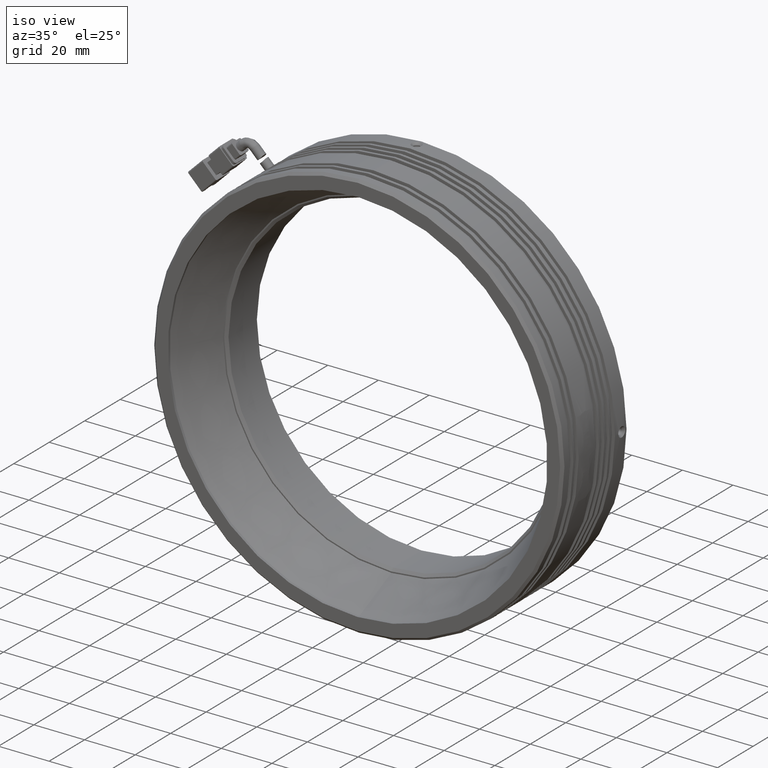
[diagram: clean part render]
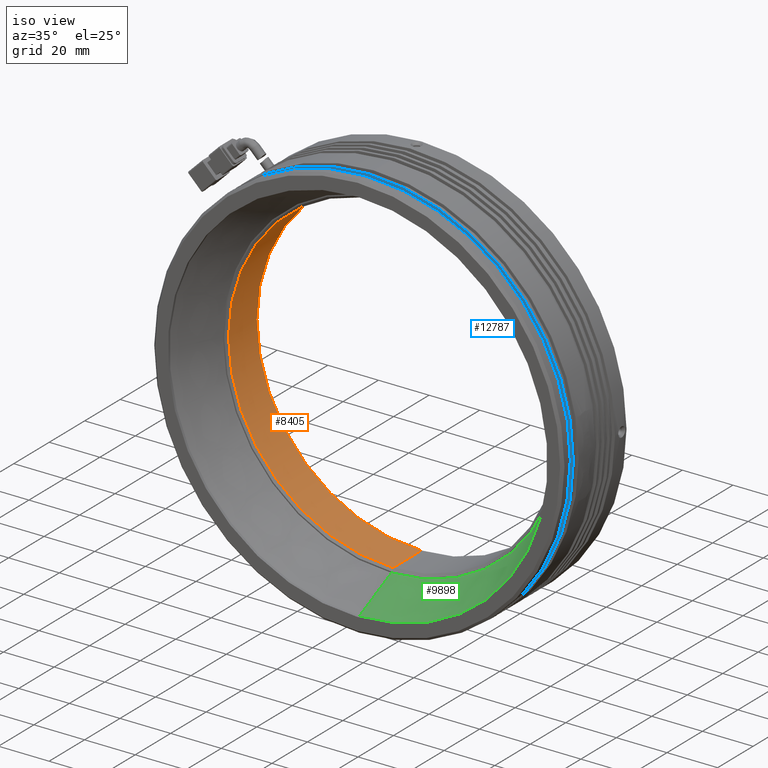
[diagram: same view with three faces highlighted in distinct colors, each labeled with its STEP entity id]
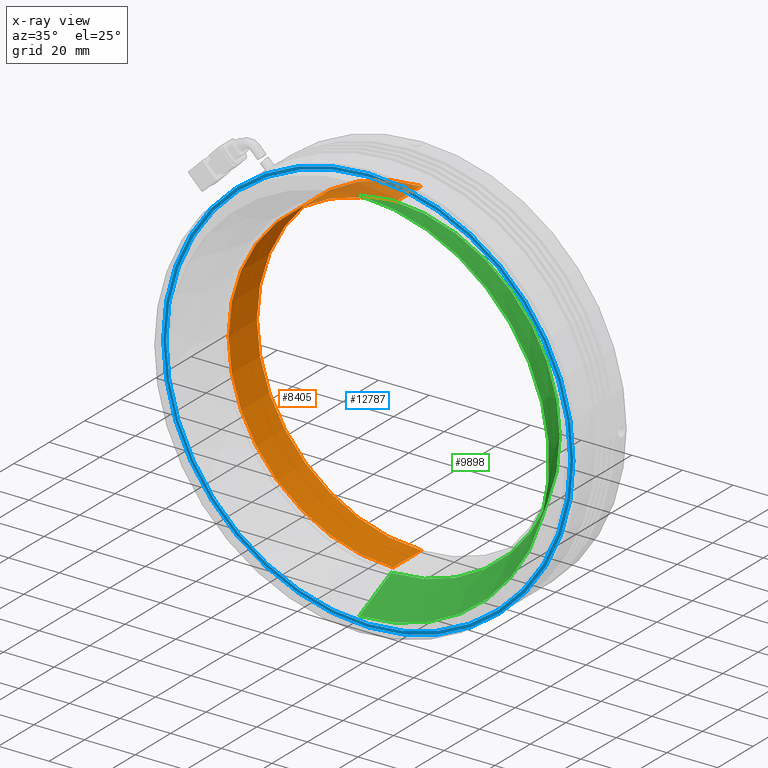
[diagram: x-ray of the same camera — body ghosted, the three highlighted faces saturated]
A machine part, iso view with three faces highlighted in distinct colors.
The next image is the same camera in x-ray (body ghosted, the three faces saturated) — at least one of them is partly hidden behind the body in this view.
Their STEP definitions:

[orange] entity #8405 — the highlighted cylindrical surface (partial cylindrical patch) has radius 65 mm, axis along (-0, -1, -0).
#7 = VERTEX_POINT ( 'NONE', #11844 ) ;
#688 = AXIS2_PLACEMENT_3D ( 'NONE', #10163, #3981, #11201 ) ;
#1126 = CARTESIAN_POINT ( 'NONE',  ( -9.785022266880027100, -36.61656906723988000, 65.00000000000000000 ) ) ;
#1585 = CARTESIAN_POINT ( 'NONE',  ( -9.785022266880036000, 10.87111437183998300, -65.00000000000000000 ) ) ;
#2108 = ORIENTED_EDGE ( 'NONE', *, *, #7920, .T. ) ;
#2397 = CARTESIAN_POINT ( 'NONE',  ( -9.785022266880036000, -36.61656906723988000, -65.00000000000000000 ) ) ;
#2437 = DIRECTION ( 'NONE',  ( -0.0000000000000000000, -1.000000000000000000, -0.0000000000000000000 ) ) ;
#2842 = EDGE_CURVE ( 'NONE', #5486, #7, #7118, .T. ) ;
#3135 = CARTESIAN_POINT ( 'NONE',  ( -9.785022266880036000, 26.87111437184004700, 0.0000000000000000000 ) ) ;
#3225 = DIRECTION ( 'NONE',  ( -0.0000000000000000000, -1.000000000000000000, -0.0000000000000000000 ) ) ;
#3391 = LINE ( 'NONE', #1126, #11303 ) ;
#3981 = DIRECTION ( 'NONE',  ( 0.0000000000000000000, 1.000000000000000000, 0.0000000000000000000 ) ) ;
#4002 = VERTEX_POINT ( 'NONE', #10258 ) ;
#4162 = DIRECTION ( 'NONE',  ( 0.0000000000000000000, 0.0000000000000000000, 1.000000000000000000 ) ) ;
#4708 = CYLINDRICAL_SURFACE ( 'NONE', #8647, 65.00000000000000000 ) ;
#5015 = ORIENTED_EDGE ( 'NONE', *, *, #2842, .F. ) ;
#5208 = VERTEX_POINT ( 'NONE', #9303 ) ;
#5486 = VERTEX_POINT ( 'NONE', #1585 ) ;
#5773 = VECTOR ( 'NONE', #9626, 1000.000000000000000 ) ;
#6069 = EDGE_LOOP ( 'NONE', ( #2108, #12142, #5015, #9519 ) ) ;
#6242 = EDGE_CURVE ( 'NONE', #5208, #5486, #8533, .T. ) ;
#7118 = CIRCLE ( 'NONE', #688, 65.00000000000000000 ) ;
#7652 = DIRECTION ( 'NONE',  ( 0.0000000000000000000, 0.0000000000000000000, -1.000000000000000000 ) ) ;
#7920 = EDGE_CURVE ( 'NONE', #5208, #4002, #8302, .T. ) ;
#8302 = CIRCLE ( 'NONE', #11273, 65.00000000000000000 ) ;
#8405 = ADVANCED_FACE ( 'NONE', ( #8451 ), #4708, .F. ) ;
#8451 = FACE_OUTER_BOUND ( 'NONE', #6069, .T. ) ;
#8533 = LINE ( 'NONE', #2397, #5773 ) ;
#8647 = AXIS2_PLACEMENT_3D ( 'NONE', #8661, #2437, #7652 ) ;
#8661 = CARTESIAN_POINT ( 'NONE',  ( -9.785022266880036000, -36.61656906723988000, 0.0000000000000000000 ) ) ;
#9303 = CARTESIAN_POINT ( 'NONE',  ( -9.785022266880036000, 26.87111437184004700, -65.00000000000000000 ) ) ;
#9519 = ORIENTED_EDGE ( 'NONE', *, *, #6242, .F. ) ;
#9626 = DIRECTION ( 'NONE',  ( -0.0000000000000000000, -1.000000000000000000, -0.0000000000000000000 ) ) ;
#10163 = CARTESIAN_POINT ( 'NONE',  ( -9.785022266880036000, 10.87111437183998300, 0.0000000000000000000 ) ) ;
#10258 = CARTESIAN_POINT ( 'NONE',  ( -9.785022266880027100, 26.87111437184004700, 65.00000000000000000 ) ) ;
#10344 = DIRECTION ( 'NONE',  ( -0.0000000000000000000, 1.000000000000000000, -0.0000000000000000000 ) ) ;
#11201 = DIRECTION ( 'NONE',  ( 0.0000000000000000000, 0.0000000000000000000, -1.000000000000000000 ) ) ;
#11273 = AXIS2_PLACEMENT_3D ( 'NONE', #3135, #10344, #4162 ) ;
#11303 = VECTOR ( 'NONE', #3225, 1000.000000000000000 ) ;
#11410 = EDGE_CURVE ( 'NONE', #4002, #7, #3391, .T. ) ;
#11844 = CARTESIAN_POINT ( 'NONE',  ( -9.785022266880027100, 10.87111437183998300, 65.00000000000000000 ) ) ;
#12142 = ORIENTED_EDGE ( 'NONE', *, *, #11410, .T. ) ;

[blue] entity #12787 — the highlighted planar face has unit normal (0, 1, 0).
#14 = DIRECTION ( 'NONE',  ( 0.0000000000000000000, -0.0000000000000000000, 1.000000000000000000 ) ) ;
#814 = DIRECTION ( 'NONE',  ( 0.0000000000000000000, 0.0000000000000000000, -1.000000000000000000 ) ) ;
#1043 = AXIS2_PLACEMENT_3D ( 'NONE', #13182, #7005, #814 ) ;
#1347 = EDGE_LOOP ( 'NONE', ( #6188, #3647 ) ) ;
#1458 = CARTESIAN_POINT ( 'NONE',  ( -9.785022266880036000, -3.128885628159952400, -79.79999999999989800 ) ) ;
#1647 = VERTEX_POINT ( 'NONE', #9975 ) ;
#1656 = FACE_OUTER_BOUND ( 'NONE', #1347, .T. ) ;
#1975 = FACE_BOUND ( 'NONE', #12273, .T. ) ;
#3057 = VERTEX_POINT ( 'NONE', #7141 ) ;
#3306 = CARTESIAN_POINT ( 'NONE',  ( -9.785022266880036000, -3.128885628159952400, 0.0000000000000000000 ) ) ;
#3446 = CARTESIAN_POINT ( 'NONE',  ( -9.785022266880025300, -3.128885628159952400, 79.79999999999989800 ) ) ;
#3629 = AXIS2_PLACEMENT_3D ( 'NONE', #11766, #5605, #12806 ) ;
#3647 = ORIENTED_EDGE ( 'NONE', *, *, #7323, .F. ) ;
#4327 = DIRECTION ( 'NONE',  ( 0.0000000000000000000, 0.0000000000000000000, -1.000000000000000000 ) ) ;
#4398 = ORIENTED_EDGE ( 'NONE', *, *, #6962, .F. ) ;
#4444 = AXIS2_PLACEMENT_3D ( 'NONE', #3306, #10509, #4327 ) ;
#4755 = AXIS2_PLACEMENT_3D ( 'NONE', #12365, #6192, #14 ) ;
#5582 = DIRECTION ( 'NONE',  ( 0.0000000000000000000, 1.000000000000000000, 0.0000000000000000000 ) ) ;
#5605 = DIRECTION ( 'NONE',  ( -0.0000000000000000000, -1.000000000000000000, -0.0000000000000000000 ) ) ;
#6188 = ORIENTED_EDGE ( 'NONE', *, *, #12902, .F. ) ;
#6192 = DIRECTION ( 'NONE',  ( 0.0000000000000000000, 1.000000000000000000, 0.0000000000000000000 ) ) ;
#6962 = EDGE_CURVE ( 'NONE', #11226, #11532, #13005, .T. ) ;
#7005 = DIRECTION ( 'NONE',  ( -0.0000000000000000000, -1.000000000000000000, -0.0000000000000000000 ) ) ;
#7141 = CARTESIAN_POINT ( 'NONE',  ( -9.785022266880036000, -3.128885628159952400, -81.00000000000001400 ) ) ;
#7323 = EDGE_CURVE ( 'NONE', #1647, #3057, #8495, .T. ) ;
#8244 = PLANE ( 'NONE',  #4755 ) ;
#8375 = ORIENTED_EDGE ( 'NONE', *, *, #13010, .F. ) ;
#8495 = CIRCLE ( 'NONE', #12447, 81.00000000000001400 ) ;
#9724 = CIRCLE ( 'NONE', #4444, 81.00000000000001400 ) ;
#9975 = CARTESIAN_POINT ( 'NONE',  ( -9.785022266880025300, -3.128885628159952400, 81.00000000000001400 ) ) ;
#10509 = DIRECTION ( 'NONE',  ( 0.0000000000000000000, 1.000000000000000000, 0.0000000000000000000 ) ) ;
#11226 = VERTEX_POINT ( 'NONE', #1458 ) ;
#11336 = CIRCLE ( 'NONE', #3629, 79.79999999999989800 ) ;
#11532 = VERTEX_POINT ( 'NONE', #3446 ) ;
#11746 = CARTESIAN_POINT ( 'NONE',  ( -9.785022266880036000, -3.128885628159952400, 0.0000000000000000000 ) ) ;
#11766 = CARTESIAN_POINT ( 'NONE',  ( -9.785022266880036000, -3.128885628159952400, 0.0000000000000000000 ) ) ;
#12273 = EDGE_LOOP ( 'NONE', ( #4398, #8375 ) ) ;
#12365 = CARTESIAN_POINT ( 'NONE',  ( -9.785022266880036000, -3.128885628159952400, 0.0000000000000000000 ) ) ;
#12447 = AXIS2_PLACEMENT_3D ( 'NONE', #11746, #5582, #12789 ) ;
#12787 = ADVANCED_FACE ( 'NONE', ( #1656, #1975 ), #8244, .F. ) ;
#12789 = DIRECTION ( 'NONE',  ( 0.0000000000000000000, 0.0000000000000000000, -1.000000000000000000 ) ) ;
#12806 = DIRECTION ( 'NONE',  ( 0.0000000000000000000, 0.0000000000000000000, -1.000000000000000000 ) ) ;
#12902 = EDGE_CURVE ( 'NONE', #3057, #1647, #9724, .T. ) ;
#13005 = CIRCLE ( 'NONE', #1043, 79.79999999999989800 ) ;
#13010 = EDGE_CURVE ( 'NONE', #11532, #11226, #11336, .T. ) ;
#13182 = CARTESIAN_POINT ( 'NONE',  ( -9.785022266880036000, -3.128885628159952400, 0.0000000000000000000 ) ) ;

[green] entity #9898 — the highlighted conical surface has half-angle 25.278 deg.
#68 = ORIENTED_EDGE ( 'NONE', *, *, #10544, .T. ) ;
#120 = CARTESIAN_POINT ( 'NONE',  ( -9.785022266880027100, -8.128885628159929800, 75.00000000000000000 ) ) ;
#255 = DIRECTION ( 'NONE',  ( 0.0000000000000000000, -1.000000000000000000, 0.0000000000000000000 ) ) ;
#333 = AXIS2_PLACEMENT_3D ( 'NONE', #1067, #8315, #2095 ) ;
#550 = AXIS2_PLACEMENT_3D ( 'NONE', #10196, #4022, #11252 ) ;
#1067 = CARTESIAN_POINT ( 'NONE',  ( -9.785022266880036000, -8.128885628159929800, 0.0000000000000000000 ) ) ;
#2095 = DIRECTION ( 'NONE',  ( 0.0000000000000000000, 0.0000000000000000000, -1.000000000000000000 ) ) ;
#2910 = LINE ( 'NONE', #6521, #13234 ) ;
#3236 = DIRECTION ( 'NONE',  ( 5.229319051334347500E-017, -0.9042486467459910400, 0.4270063054078288600 ) ) ;
#3750 = AXIS2_PLACEMENT_3D ( 'NONE', #6383, #255, #4392 ) ;
#4022 = DIRECTION ( 'NONE',  ( -0.0000000000000000000, -1.000000000000000000, -0.0000000000000000000 ) ) ;
#4157 = ORIENTED_EDGE ( 'NONE', *, *, #9949, .T. ) ;
#4231 = VERTEX_POINT ( 'NONE', #11056 ) ;
#4392 = DIRECTION ( 'NONE',  ( 0.0000000000000000000, 0.0000000000000000000, -1.000000000000000000 ) ) ;
#4792 = CARTESIAN_POINT ( 'NONE',  ( -9.785022266880027100, 9.871114371840059600, 66.50000000000000000 ) ) ;
#5151 = LINE ( 'NONE', #120, #7596 ) ;
#5302 = CONICAL_SURFACE ( 'NONE', #3750, 75.00000000000000000, 0.4411794804149804500 ) ;
#6383 = CARTESIAN_POINT ( 'NONE',  ( -9.785022266880036000, -8.128885628159929800, 0.0000000000000000000 ) ) ;
#6521 = CARTESIAN_POINT ( 'NONE',  ( -9.785022266880036000, -8.128885628159929800, -75.00000000000000000 ) ) ;
#6620 = FACE_OUTER_BOUND ( 'NONE', #7169, .T. ) ;
#6673 = CIRCLE ( 'NONE', #333, 75.00000000000000000 ) ;
#7169 = EDGE_LOOP ( 'NONE', ( #12491, #8470, #4157, #68 ) ) ;
#7322 = CIRCLE ( 'NONE', #550, 66.50000000000000000 ) ;
#7577 = DIRECTION ( 'NONE',  ( 0.0000000000000000000, -0.9042486467459910400, -0.4270063054078288600 ) ) ;
#7596 = VECTOR ( 'NONE', #3236, 1000.000000000000000 ) ;
#8315 = DIRECTION ( 'NONE',  ( 0.0000000000000000000, -1.000000000000000000, 0.0000000000000000000 ) ) ;
#8470 = ORIENTED_EDGE ( 'NONE', *, *, #10445, .F. ) ;
#9884 = EDGE_CURVE ( 'NONE', #10713, #13217, #5151, .T. ) ;
#9898 = ADVANCED_FACE ( 'NONE', ( #6620 ), #5302, .F. ) ;
#9949 = EDGE_CURVE ( 'NONE', #13320, #4231, #2910, .T. ) ;
#10196 = CARTESIAN_POINT ( 'NONE',  ( -9.785022266880036000, 9.871114371840059600, 0.0000000000000000000 ) ) ;
#10445 = EDGE_CURVE ( 'NONE', #13320, #10713, #7322, .T. ) ;
#10544 = EDGE_CURVE ( 'NONE', #4231, #13217, #6673, .T. ) ;
#10713 = VERTEX_POINT ( 'NONE', #4792 ) ;
#11056 = CARTESIAN_POINT ( 'NONE',  ( -9.785022266880036000, -8.128885628159929800, -75.00000000000000000 ) ) ;
#11252 = DIRECTION ( 'NONE',  ( 0.0000000000000000000, 1.043442692316876500E-016, -1.000000000000000000 ) ) ;
#11484 = CARTESIAN_POINT ( 'NONE',  ( -9.785022266880036000, 9.871114371840066700, -66.50000000000000000 ) ) ;
#12306 = CARTESIAN_POINT ( 'NONE',  ( -9.785022266880027100, -8.128885628159929800, 75.00000000000000000 ) ) ;
#12491 = ORIENTED_EDGE ( 'NONE', *, *, #9884, .F. ) ;
#13217 = VERTEX_POINT ( 'NONE', #12306 ) ;
#13234 = VECTOR ( 'NONE', #7577, 1000.000000000000000 ) ;
#13320 = VERTEX_POINT ( 'NONE', #11484 ) ;